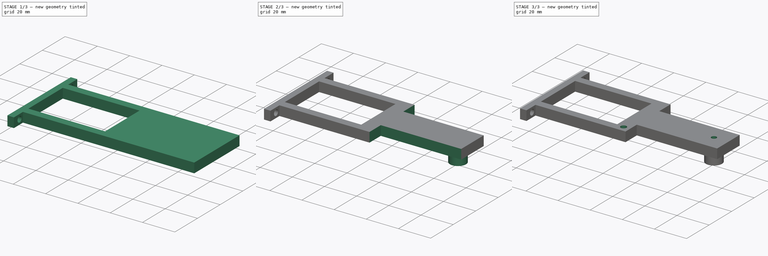
[diagram: build sequence overview — one tinted view per stage of 3, left to right]
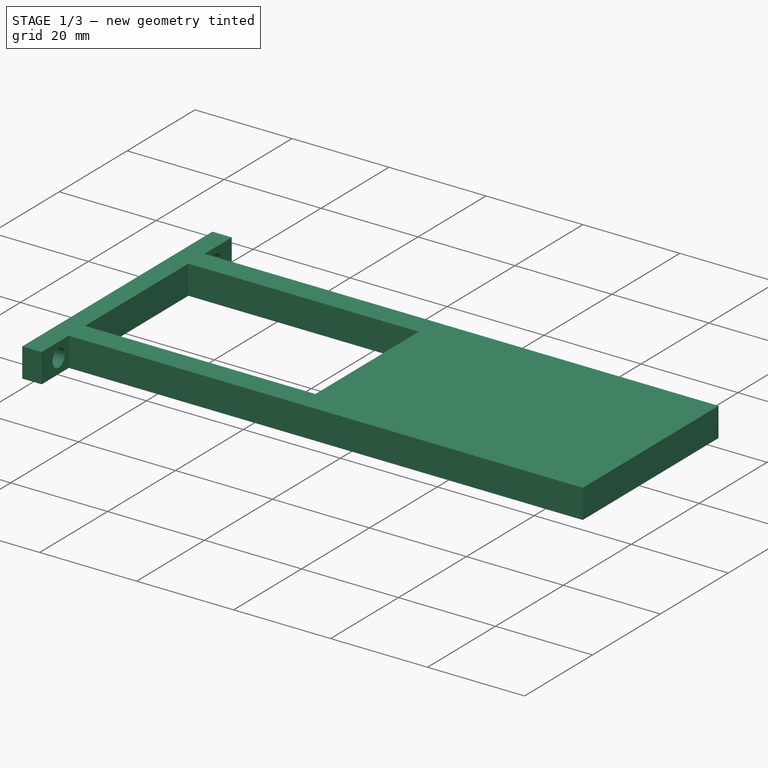
[diagram: stage 1 of 3 — iso view after this stage's code; geometry added in this stage tinted green]
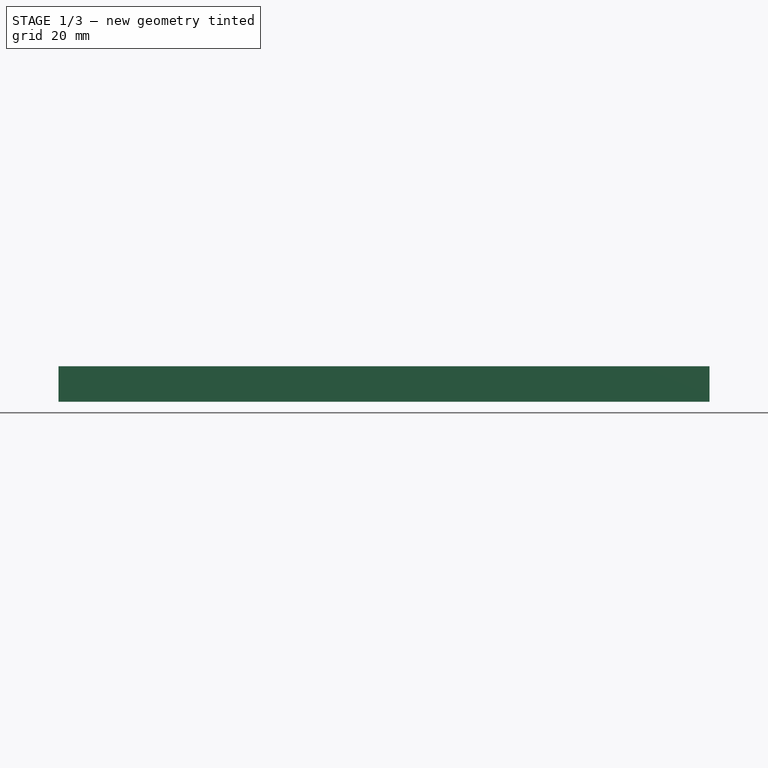
[diagram: stage 1 of 3 — front view after this stage's code; geometry added in this stage tinted green]
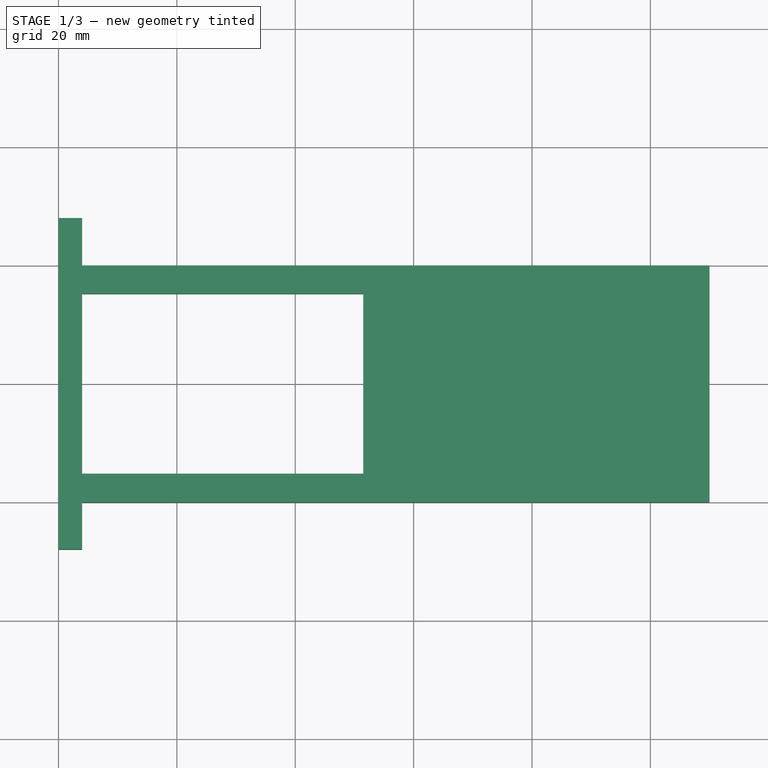
[diagram: stage 1 of 3 — top view after this stage's code; geometry added in this stage tinted green]
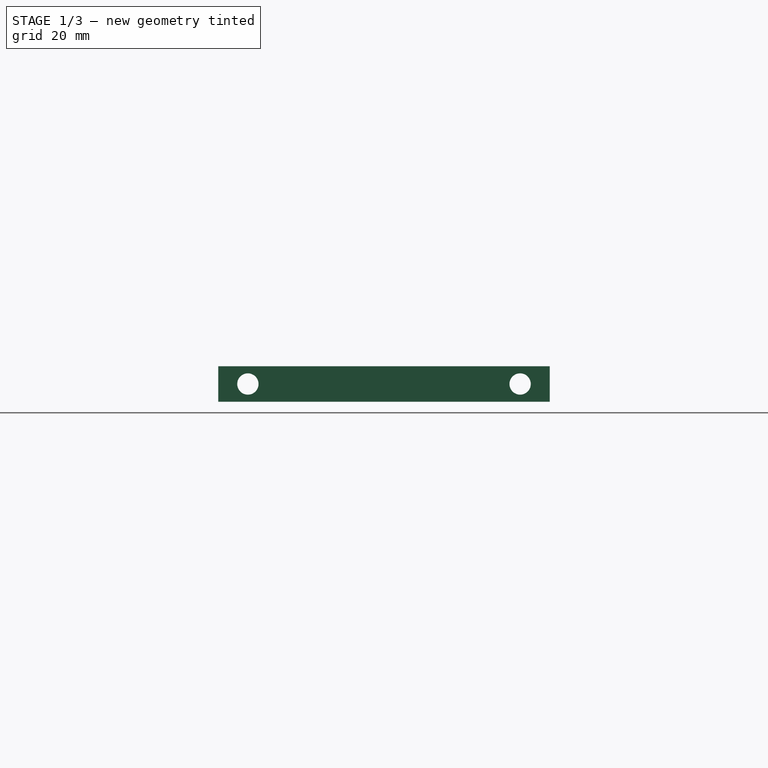
[diagram: stage 1 of 3 — right view after this stage's code; geometry added in this stage tinted green]
FCSTD DOCUMENT  (FreeCAD 0.21R33694 (Git))
Label: _mod_thighOuter
License: All rights reserved
LicenseURL: http://en.wikipedia.org/wiki/All_rights_reserved
objects: Part::Feature×15, Sketcher::SketchObject×8, PartDesign::Pocket×5, PartDesign::Pad×3, App::Part×3, PartDesign::Body×1
note: 40 computed .brp shape members not serialized (recipe doc carries the construction recipe); baked Part::Feature solids carry a one-line shape summary decoded from their .brp

FEATURE [Sketcher::SketchObject] Sketch
  FullyConstrained = true
  MapMode = 5
  Support = -> [XY_Plane]
  sketch-geometry (10):
    g0: LineSegment StartX=0 StartY=20 StartZ=0 EndX=0 EndY=-20 EndZ=0
    g1: LineSegment StartX=110 StartY=-20 StartZ=0 EndX=110 EndY=20 EndZ=0
    g2: LineSegment StartX=0 StartY=-20 StartZ=0 EndX=0 EndY=-28 EndZ=0
    g3: LineSegment StartX=0 StartY=-28 StartZ=0 EndX=4 EndY=-28 EndZ=0
    g4: LineSegment StartX=4 StartY=-28 StartZ=0 EndX=4 EndY=-20 EndZ=0
    g5: LineSegment StartX=0 StartY=20 StartZ=0 EndX=0 EndY=28 EndZ=0
    g6: LineSegment StartX=0 StartY=28 StartZ=0 EndX=4 EndY=28 EndZ=0
    g7: LineSegment StartX=4 StartY=28 StartZ=0 EndX=4 EndY=20 EndZ=0
    g8: LineSegment StartX=4 StartY=20 StartZ=0 EndX=110 EndY=20 EndZ=0
    g9: LineSegment StartX=4 StartY=-20 StartZ=0 EndX=110 EndY=-20 EndZ=0
  constraints (30):
    c: Vertical(g0)
    c: DistanceX(g0,g-1) = 0
    c: Vertical(g1)
    c: DistanceX(g-1,g1) = 110
    c: DistanceY(g-1,g0) = 20
    c: DistanceY(g0,g-1) = 20
    c: DistanceY(g1,g-1) = 20
    c: DistanceY(g-1,g1) = 20
    c: PointOnObject(g2,g-2)
    c: Coincident(g3,g2)
    c: Horizontal(g3)
    c: Coincident(g4,g3)
    c: Vertical(g4)
    c: Coincident(g5,g0)
    c: PointOnObject(g5,g-2)
    c: Coincident(g6,g5)
    c: Horizontal(g6)
    c: Coincident(g7,g6)
    c: Vertical(g7)
    c: DistanceX(g4,g7) = 0
    c: DistanceX(g-1,g3) = 4
    c: DistanceY(g0,g5) = 8
    c: DistanceY(g2,g0) = 8
    c: Coincident(g0,g2)
    c: Coincident(g8,g7)
    c: Coincident(g8,g1)
    c: Horizontal(g8)
    c: Coincident(g9,g4)
    c: Coincident(g9,g1)
    c: Horizontal(g9)
FEATURE [PartDesign::Pad] Pad
  Direction = (0,0,1)
  Length = 6
  Length2 = 10
  Profile = -> Sketch
  ReferenceAxis = -> Sketch [N_Axis]
  Type = 0
FEATURE [Sketcher::SketchObject] Sketch001
  FullyConstrained = true
  MapMode = 5
  Placement = pos=(0,0,0) rot=(0.57735,-0.57735,-0.57735;2.0944rad)
  Support = -> [Pad]
  sketch-geometry (2):
    g0: Circle CenterX=23 CenterY=3 CenterZ=0 NormalX=0 NormalY=0 NormalZ=1 AngleXU=0 Radius=1.8
    g1: Circle CenterX=-23 CenterY=3 CenterZ=0 NormalX=0 NormalY=0 NormalZ=1 AngleXU=0 Radius=1.8
  constraints (6):
    c: Radius(g0) = 1.8
    c: Radius(g1) = 1.8
    c: DistanceY(g-1,g1) = 3
    c: DistanceY(g-1,g0) = 3
    c: DistanceX(g1,g-1) = 23
    c: DistanceX(g-1,g0) = 23
FEATURE [PartDesign::Pocket] Pocket
  BaseFeature = -> Pad
  Direction = (1,0,0)
  Length = 5
  Length2 = 5
  Profile = -> Sketch001
  ReferenceAxis = -> Sketch001 [N_Axis]
  Type = 0
FEATURE [Sketcher::SketchObject] Sketch002
  FullyConstrained = true
  MapMode = 5
  Placement = pos=(0,0,0) rot=(1,0,0;3.14159rad)
  Support = -> [Pocket]
  sketch-geometry (4):
    g0: LineSegment StartX=4 StartY=15.2 StartZ=0 EndX=4 EndY=-15.2 EndZ=0
    g1: LineSegment StartX=4 StartY=-15.2 StartZ=0 EndX=51.5 EndY=-15.2 EndZ=0
    g2: LineSegment StartX=51.5 StartY=-15.2 StartZ=0 EndX=51.5 EndY=15.2 EndZ=0
    g3: LineSegment StartX=51.5 StartY=15.2 StartZ=0 EndX=4 EndY=15.2 EndZ=0
  constraints (12):
    c: Coincident(g1,g0)
    c: Horizontal(g1)
    c: Coincident(g2,g1)
    c: Coincident(g3,g2)
    c: Coincident(g3,g0)
    c: Horizontal(g3)
    c: Vertical(g0)
    c: Vertical(g2)
    c: DistanceX(g-1,g0) = 4
    c: DistanceY(g-1,g0) = 15.2
    c: DistanceY(g0,g-1) = 15.2
    c: DistanceX(g0,g2) = 47.5
FEATURE [Part::Feature] Part__Feature  label="DC11_A01_DUMMY"
  shape: bbox 28.5 x 46.5 x 36 mm, 249 faces, 2 solids (baked)
FEATURE [Part::Feature] Part__Feature001  label="SOLID"
  shape: bbox 28.3 x 10.2 x 6.103 mm, 72 faces (baked)
FEATURE [Part::Feature] Part__Feature002  label="SHELL"
  shape: bbox 27.7 x 17.72 x 8.3 mm, 23 faces, 0 solids (baked)
FEATURE [App::Part] DC11_A01_CASE_CVR_DUMMY
  Group = -> [Part__Feature001,Part__Feature002]
  Origin = -> Origin001
FEATURE [Part::Feature] Part__Feature003  label="DC12_A01_SPACER_RING"
  Placement = pos=(-11,8,14.2) rot=(0,0.707107,0.707107;3.14159rad)
  shape: bbox 4.75 x 4.75 x 2.8 mm, 18 faces (baked)
FEATURE [Part::Feature] Part__Feature004  label="DC12_A01_SPACER_RING001"
  Placement = pos=(11,8,14.2) rot=(0,0.707107,0.707107;3.14159rad)
  shape: bbox 4.75 x 4.75 x 2.8 mm, 18 faces (baked)
FEATURE [Part::Feature] Part__Feature005  label="DC12_A01_SPACER_RING002"
  Placement = pos=(-11,-32,14.2) rot=(0,0.707107,0.707107;3.14159rad)
  shape: bbox 4.75 x 4.75 x 2.8 mm, 18 faces (baked)
FEATURE [Part::Feature] Part__Feature006  label="DC12_A01_SPACER_RING003"
  Placement = pos=(11,-32,14.2) rot=(0,0.707107,0.707107;3.14159rad)
  shape: bbox 4.75 x 4.75 x 2.8 mm, 18 faces (baked)
FEATURE [Part::Feature] Part__Feature007  label="DC12_A01_SPACER_RING004"
  Placement = pos=(11,-32,-14.2) rot=(-1,0,0;1.5708rad)
  shape: bbox 4.75 x 4.75 x 2.8 mm, 18 faces (baked)
FEATURE [Part::Feature] Part__Feature008  label="DC12_A01_SPACER_RING005"
  Placement = pos=(-11,-32,-14.2) rot=(-1,0,0;1.5708rad)
  shape: bbox 4.75 x 4.75 x 2.8 mm, 18 faces (baked)
FEATURE [Part::Feature] Part__Feature009  label="DC12_A01_SPACER_RING006"
  Placement = pos=(11,8,-14.2) rot=(-1,0,0;1.5708rad)
  shape: bbox 4.75 x 4.75 x 2.8 mm, 18 faces (baked)
FEATURE [Part::Feature] Part__Feature010  label="DC12_A01_SPACER_RING007"
  Placement = pos=(-11,8,-14.2) rot=(-1,0,0;1.5708rad)
  shape: bbox 4.75 x 4.75 x 2.8 mm, 18 faces (baked)
FEATURE [Part::Feature] Part__Feature011  label="DC11_A01_IDLER_DUMMY"
  Placement = pos=(0,0,-19) rot=(-1,0,0;1.5708rad)
  shape: bbox 20.5 x 20.5 x 3.5 mm, 81 faces (baked)
FEATURE [Part::Feature] Part__Feature012  label="DC11_A01_IDLER_CAP_DUMMY"
  Placement = pos=(0,0,-18.8) rot=(1,0,0;1.5708rad)
  shape: bbox 12.1 x 9.806 x 4 mm, 29 faces (baked)
FEATURE [Part::Feature] Part__Feature013  label="SOLID001"
  shape: bbox 5.953 x 7.959 x 5.953 mm, 27 faces (baked)
FEATURE [Part::Feature] Part__Feature014  label="SHELL001"
  shape: bbox 2.5 x 6 x 2.5 mm, 2 faces, 0 solids (baked)
FEATURE [App::Part] PHS_M3X6
  Group = -> [Part__Feature013,Part__Feature014]
  Origin = -> Origin002
  Placement = pos=(0,0,-16.6) rot=(-1,0,0;1.5708rad)
FEATURE [App::Part] DC11_A01_DUMMY_ASM
  Group = -> [Part__Feature,DC11_A01_CASE_CVR_DUMMY,Part__Feature003,Part__Feature004,Part__Feature005,Part__Feature006,Part__Feature007,Part__Feature008,Part__Feature009,Part__Feature010,Part__Feature011,Part__Feature012,PHS_M3X6]
  Origin = -> Origin003
  Placement = pos=(14,-3.1e-15,-3) rot=(0,0,1;1.5708rad)
FEATURE [PartDesign::Pocket] Pocket001
  BaseFeature = -> Pocket
  Direction = (0,0,1)
  Length = 20
  Length2 = 5
  Profile = -> Sketch002
  ReferenceAxis = -> Sketch002 [N_Axis]
  Type = 0
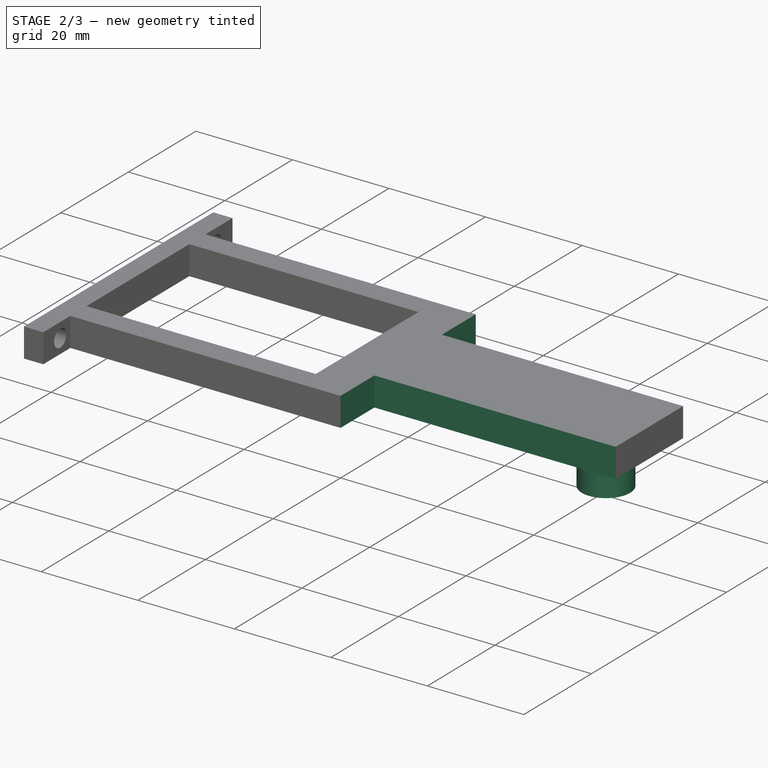
[diagram: stage 2 of 3 — iso view after this stage's code; geometry added in this stage tinted green]
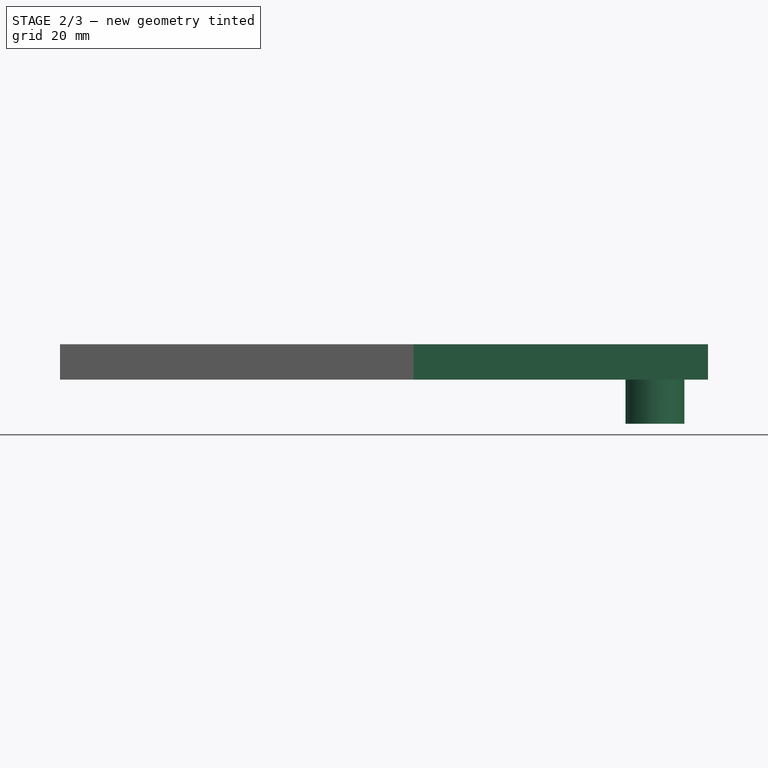
[diagram: stage 2 of 3 — front view after this stage's code; geometry added in this stage tinted green]
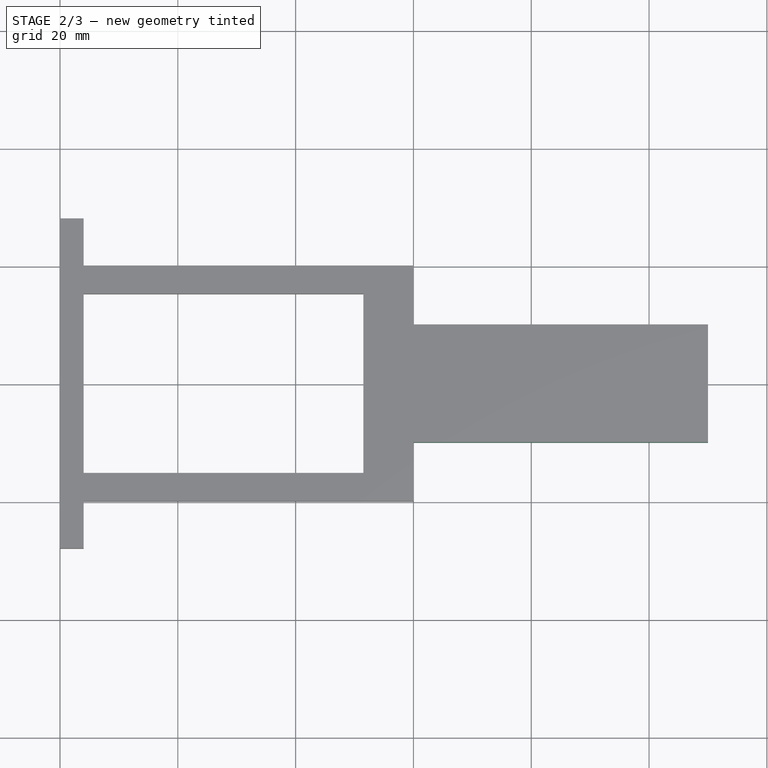
[diagram: stage 2 of 3 — top view after this stage's code; geometry added in this stage tinted green]
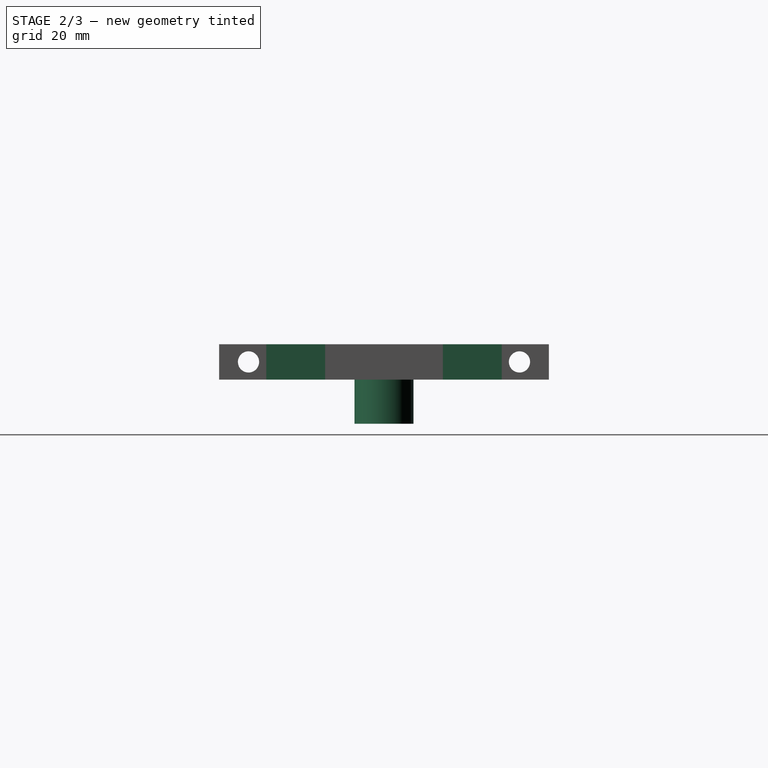
[diagram: stage 2 of 3 — right view after this stage's code; geometry added in this stage tinted green]
FEATURE [Sketcher::SketchObject] Sketch003
  FullyConstrained = true
  MapMode = 5
  Placement = pos=(0,0,0) rot=(1,0,0;3.14159rad)
  Support = -> [Pocket001]
  sketch-geometry (1):
    g0: Circle CenterX=101 CenterY=0 CenterZ=0 NormalX=0 NormalY=0 NormalZ=1 AngleXU=0 Radius=5
  constraints (3):
    c: PointOnObject(g0,g-1)
    c: Radius(g0) = 5
    c: DistanceX(g-1,g0) = 101
FEATURE [Sketcher::SketchObject] Sketch005
  FullyConstrained = true
  MapMode = 5
  Placement = pos=(0,0,6) rot=(0,0,1;0rad)
  sketch-geometry (8):
    g0: LineSegment StartX=60 StartY=-10 StartZ=0 EndX=110 EndY=-10 EndZ=0
    g1: LineSegment StartX=110 StartY=-10 StartZ=0 EndX=110 EndY=-20 EndZ=0
    g2: LineSegment StartX=110 StartY=-20 StartZ=0 EndX=60 EndY=-20 EndZ=0
    g3: LineSegment StartX=60 StartY=-20 StartZ=0 EndX=60 EndY=-10 EndZ=0
    g4: LineSegment StartX=60 StartY=20 StartZ=0 EndX=110 EndY=20 EndZ=0
    g5: LineSegment StartX=110 StartY=20 StartZ=0 EndX=110 EndY=10 EndZ=0
    g6: LineSegment StartX=110 StartY=10 StartZ=0 EndX=60 EndY=10 EndZ=0
    g7: LineSegment StartX=60 StartY=10 StartZ=0 EndX=60 EndY=20 EndZ=0
  constraints (24):
    c: Coincident(g0,g1)
    c: Coincident(g1,g2)
    c: Coincident(g2,g3)
    c: Coincident(g3,g0)
    c: Horizontal(g0)
    c: Horizontal(g2)
    c: Vertical(g1)
    c: Vertical(g3)
    c: Coincident(g4,g5)
    c: Coincident(g5,g6)
    c: Coincident(g6,g7)
    c: Coincident(g7,g4)
    c: Horizontal(g4)
    c: Horizontal(g6)
    c: Vertical(g5)
    c: Vertical(g7)
    c: DistanceX(g6,g0) = 0
    c: DistanceX(g5,g0) = 0
    c: DistanceY(g0,g-1) = 10
    c: DistanceY(g-1,g6) = 10
    c: DistanceY(g2,g0) = 10
    c: DistanceY(g6,g4) = 10
    c: DistanceX(g-1,g4) = 110
    c: DistanceX(g-1,g6) = 60
FEATURE [PartDesign::Pocket] Pocket004
  BaseFeature = -> Pocket001
  Direction = (0,0,-1)
  Length = 20
  Length2 = 5
  Profile = -> Sketch005
  ReferenceAxis = -> Sketch005 [N_Axis]
  Type = 0
FEATURE [PartDesign::Pad] Pad001
  BaseFeature = -> Pocket004
  Direction = (0,0,-1)
  Length = 7.5
  Length2 = 10
  Profile = -> Sketch003
  ReferenceAxis = -> Sketch003 [N_Axis]
  Type = 0
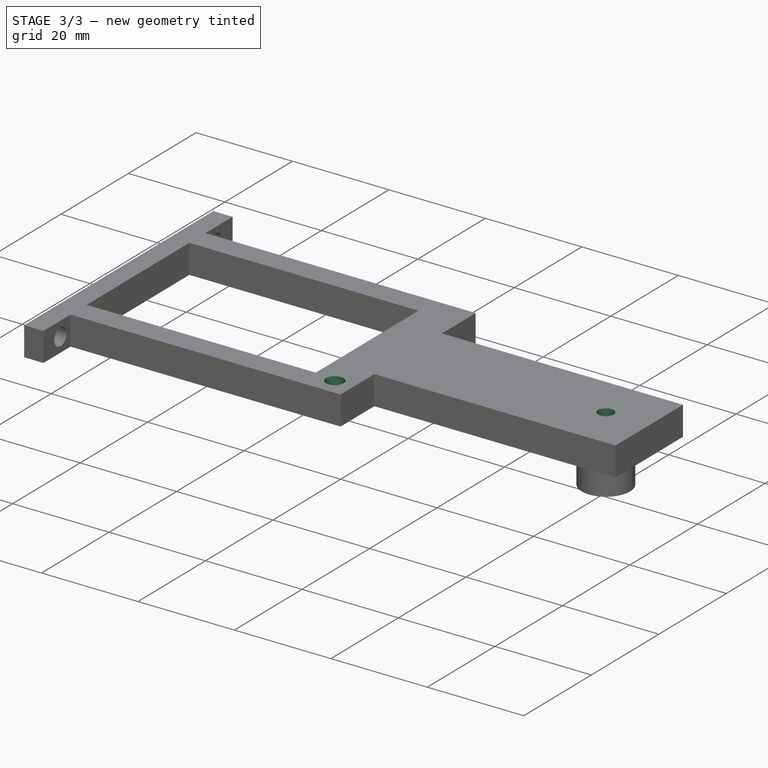
[diagram: stage 3 of 3 — iso view after this stage's code; geometry added in this stage tinted green]
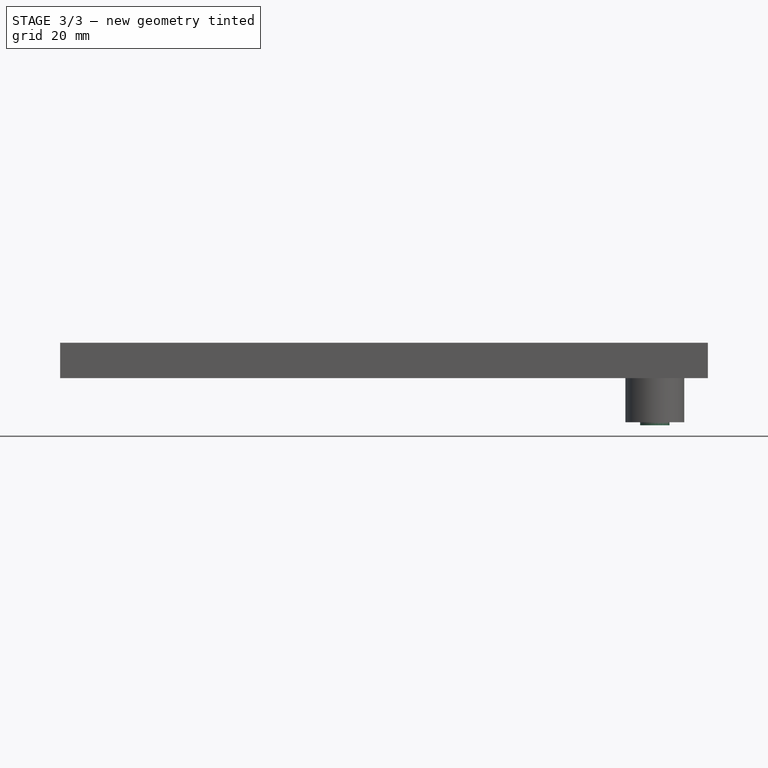
[diagram: stage 3 of 3 — front view after this stage's code; geometry added in this stage tinted green]
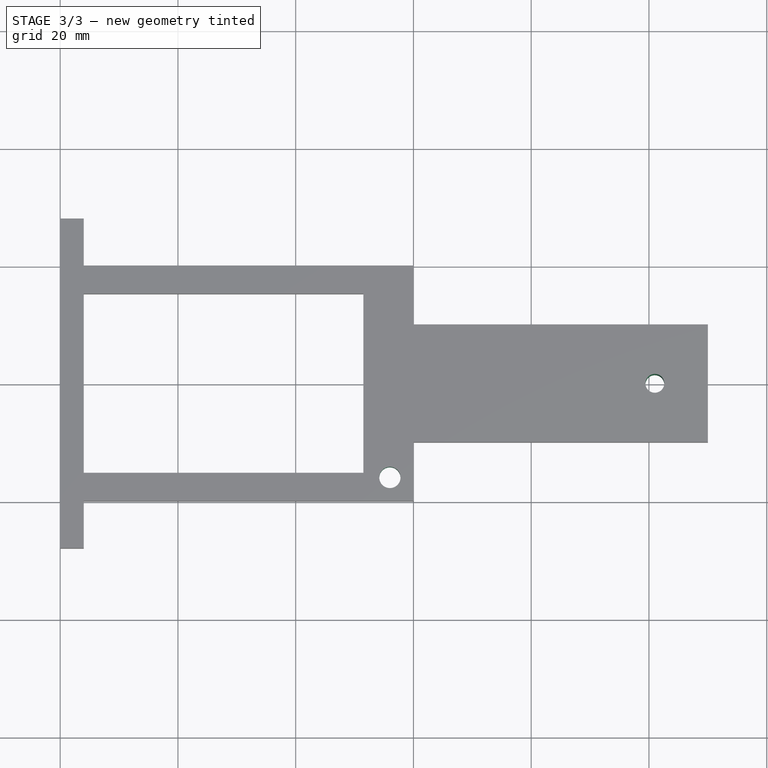
[diagram: stage 3 of 3 — top view after this stage's code; geometry added in this stage tinted green]
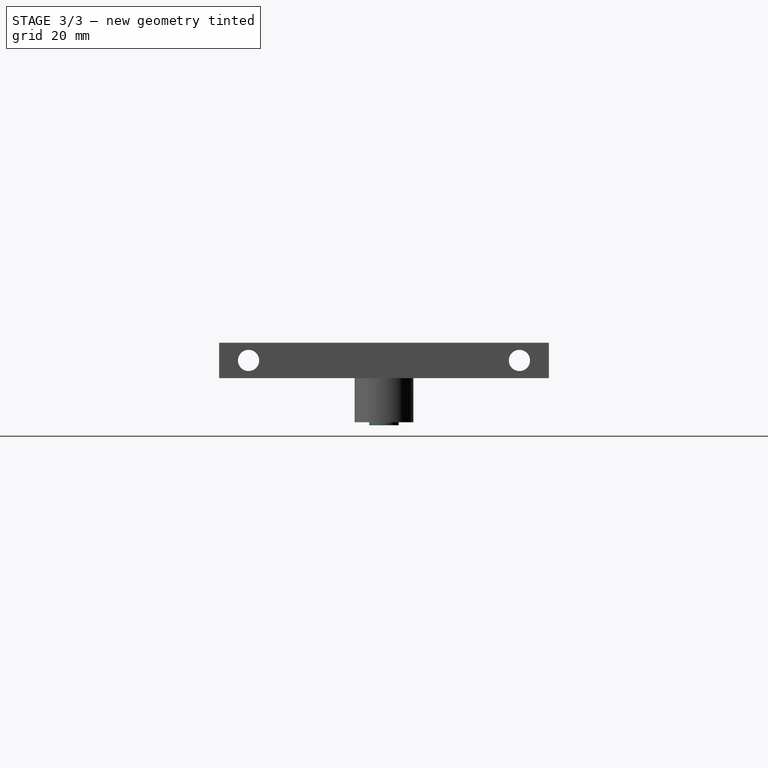
[diagram: stage 3 of 3 — right view after this stage's code; geometry added in this stage tinted green]
FEATURE [Sketcher::SketchObject] Sketch009
  FullyConstrained = true
  MapMode = 5
  Placement = pos=(0,0,-7) rot=(1,0,0;3.14159rad)
  sketch-geometry (1):
    g0: Circle CenterX=101 CenterY=0 CenterZ=0 NormalX=0 NormalY=0 NormalZ=1 AngleXU=0 Radius=2.5
  constraints (3):
    c: PointOnObject(g0,g-1)
    c: Radius(g0) = 2.5
    c: DistanceX(g-1,g0) = 101
FEATURE [PartDesign::Pad] Pad002
  BaseFeature = -> Pad001
  Direction = (0,0,-1)
  Length = 1
  Length2 = 10
  Profile = -> Sketch009
  ReferenceAxis = -> Sketch009 [N_Axis]
  Type = 0
FEATURE [Sketcher::SketchObject] Sketch008
  FullyConstrained = true
  MapMode = 5
  Placement = pos=(0,0,-8) rot=(1,0,0;3.14159rad)
  Support = -> [Pad002]
  sketch-geometry (1):
    g0: Circle CenterX=101 CenterY=0 CenterZ=0 NormalX=0 NormalY=0 NormalZ=1 AngleXU=0 Radius=1.6
  constraints (3):
    c: PointOnObject(g0,g-1)
    c: Radius(g0) = 1.6
    c: DistanceX(g-1,g0) = 101
FEATURE [PartDesign::Pocket] Pocket006
  BaseFeature = -> Pad002
  Direction = (0,0,1)
  Length = 20
  Length2 = 5
  Profile = -> Sketch008
  ReferenceAxis = -> Sketch008 [N_Axis]
  Type = 0
FEATURE [Sketcher::SketchObject] Sketch006
  FullyConstrained = true
  MapMode = 5
  Placement = pos=(0,0,0) rot=(1,0,0;3.14159rad)
  Support = -> [Pocket006]
  sketch-geometry (1):
    g0: Circle CenterX=56 CenterY=16 CenterZ=0 NormalX=0 NormalY=0 NormalZ=1 AngleXU=0 Radius=1.8
  constraints (3):
    c: Radius(g0) = 1.8
    c: DistanceY(g0,g-1) = -16
    c: DistanceX(g-1,g0) = 56
FEATURE [PartDesign::Pocket] Pocket007
  BaseFeature = -> Pocket006
  Direction = (0,0,1)
  Length = 6
  Length2 = 5
  Profile = -> Sketch006
  ReferenceAxis = -> Sketch006 [N_Axis]
  Type = 0
FEATURE [PartDesign::Body] Body
  Group = -> [Sketch,Pad,Sketch001,Pocket,Sketch002,Pocket001,Sketch003,Sketch005,Pocket004,Pad001,Sketch006,Sketch008,Sketch009,Pad002,Pocket006,Pocket007]
  Origin = -> Origin
  Tip = -> Pocket007
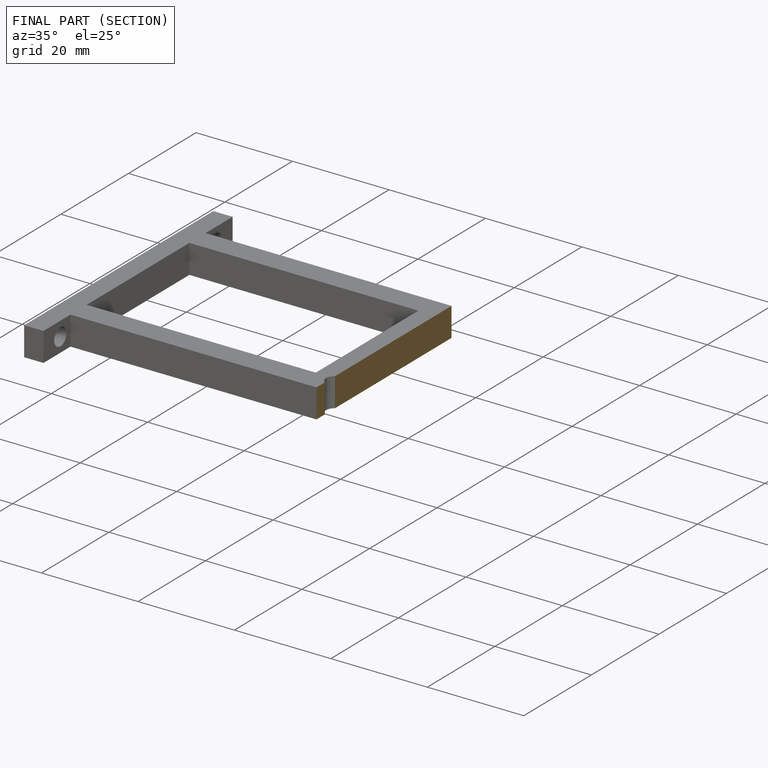
[diagram: finished part — half-section view (interior)]
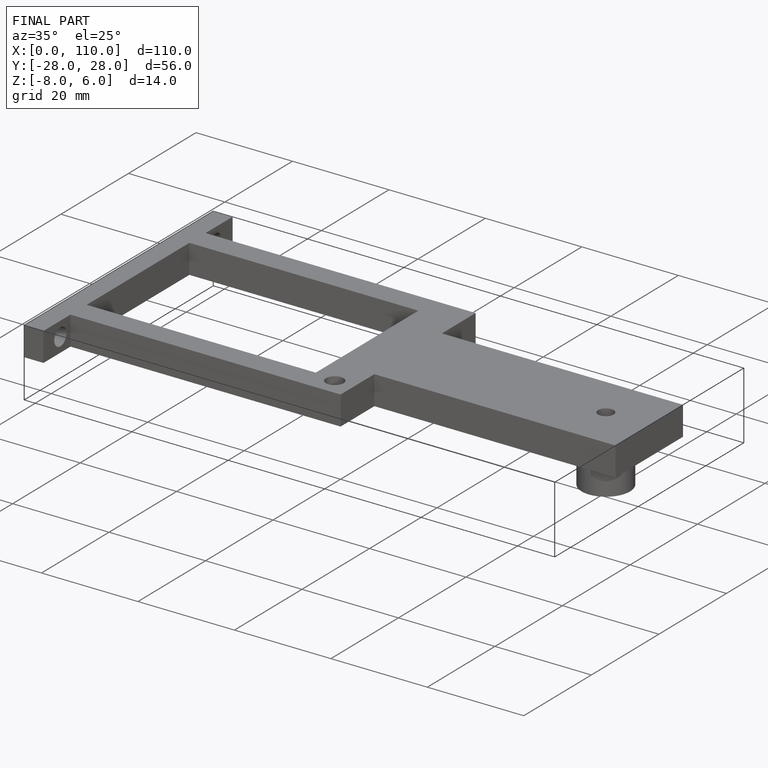
[diagram: finished part — iso view with bounding-box wireframe]
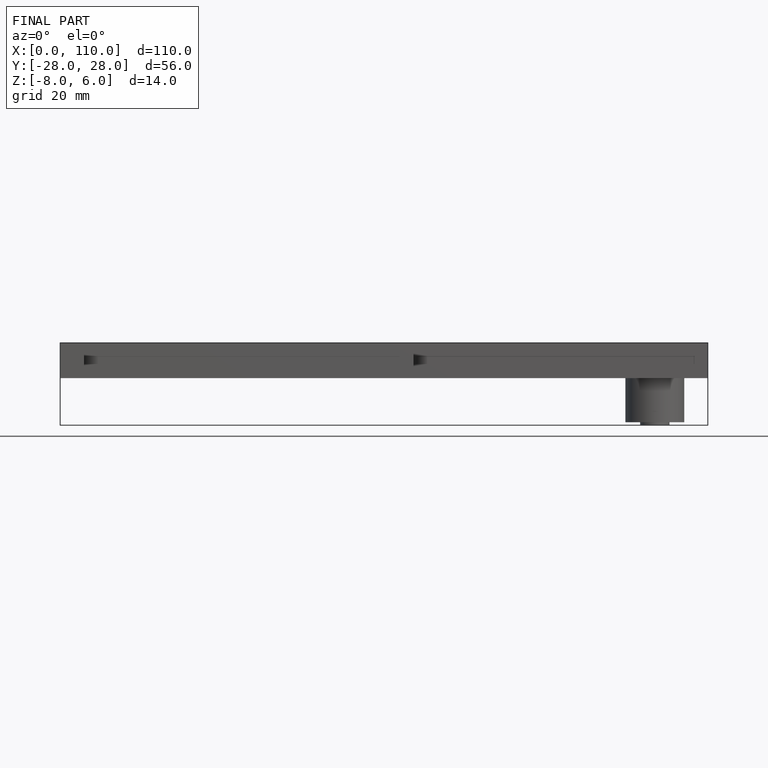
[diagram: finished part — front view with bounding-box wireframe]
